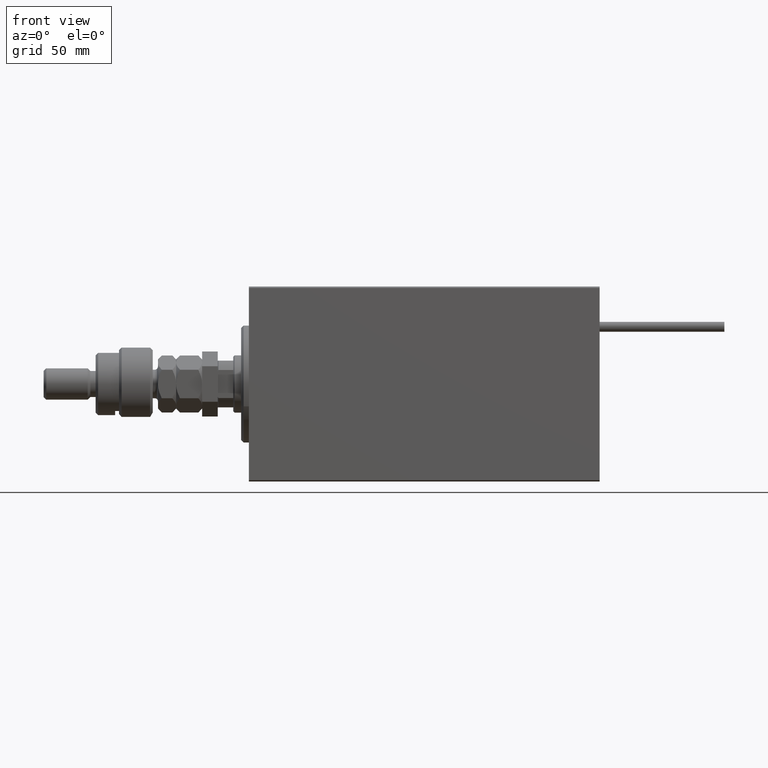
[diagram: clean part render]
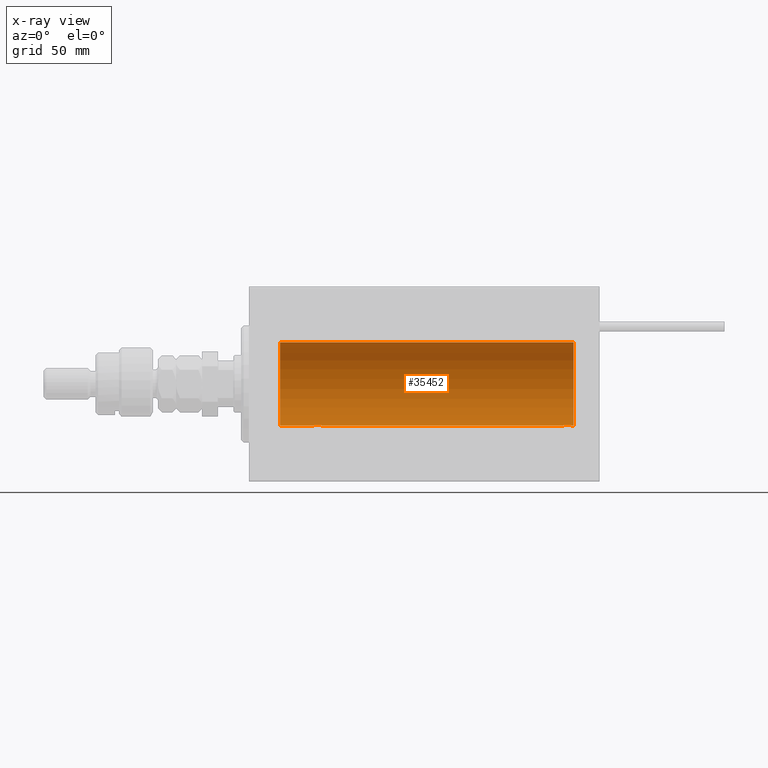
[diagram: x-ray — body ghosted, one internal face saturated and labeled with its STEP entity id]
A machine part, front view, then the same camera in x-ray: the body is ghosted and one INTERNAL B-rep face — a face not visible from any outside direction — is saturated and labeled: STEP entity #35452.
In plain terms, the highlighted cylindrical surface (partial cylindrical patch) has radius 16 mm, axis along (-1, -0, -0).
Its self-contained STEP definition (entity closure, byte-faithful):
#1146 = VECTOR ( 'NONE', #15859, 1000.000000000000000 ) ;
#1568 = CARTESIAN_POINT ( 'NONE',  ( 124.3978372649889508, 0.6445079780200543285, -15.98747331501412461 ) ) ;
#1765 = ORIENTED_EDGE ( 'NONE', *, *, #32728, .F. ) ;
#2180 = ORIENTED_EDGE ( 'NONE', *, *, #9763, .F. ) ;
#2377 = CARTESIAN_POINT ( 'NONE',  ( 123.8207582482893514, 1.507649250492127280, -15.92908549642226745 ) ) ;
#2409 = CARTESIAN_POINT ( 'NONE',  ( 125.0000000000000000, 0.000000000000000000, 0.000000000000000000 ) ) ;
#2413 = DIRECTION ( 'NONE',  ( -1.000000000000000000, 0.000000000000000000, 0.000000000000000000 ) ) ;
#2506 = VERTEX_POINT ( 'NONE', #27371 ) ;
#4272 = CARTESIAN_POINT ( 'NONE',  ( 24.50000000000000000, -2.103177090749212087E-15, -16.00000000000000000 ) ) ;
#5263 = LINE ( 'NONE', #21637, #51863 ) ;
#5868 = CARTESIAN_POINT ( 'NONE',  ( 124.4356905292613078, 0.5198215460038736468, -15.99206840425679310 ) ) ;
#6010 = DIRECTION ( 'NONE',  ( 0.000000000000000000, 0.000000000000000000, 1.000000000000000000 ) ) ;
#6136 = CARTESIAN_POINT ( 'NONE',  ( 124.0900152810012571, 1.220169175415116714, -15.95377581882983975 ) ) ;
#6408 = CARTESIAN_POINT ( 'NONE',  ( 120.5129947599158697, 0.2623312429553169567, -15.99836091803360105 ) ) ;
#6436 = FACE_OUTER_BOUND ( 'NONE', #16516, .T. ) ;
#6481 = CARTESIAN_POINT ( 'NONE',  ( 125.0000000000000000, 0.000000000000000000, 16.00000000000000000 ) ) ;
#6489 = CARTESIAN_POINT ( 'NONE',  ( 28.29749928605041021, 0.8866640484200126737, -15.97587307151818514 ) ) ;
#6804 = VECTOR ( 'NONE', #30039, 1000.000000000000000 ) ;
#6971 = CARTESIAN_POINT ( 'NONE',  ( 11.99999999999999645, 0.000000000000000000, 0.000000000000000000 ) ) ;
#7017 = CARTESIAN_POINT ( 'NONE',  ( 24.51299475991586974, 0.2623312429553280034, -15.99836091803359750 ) ) ;
#7201 = DIRECTION ( 'NONE',  ( -1.000000000000000000, -0.000000000000000000, -0.000000000000000000 ) ) ;
#8985 = VERTEX_POINT ( 'NONE', #4272 ) ;
#9174 = EDGE_CURVE ( 'NONE', #24234, #16829, #33188, .T. ) ;
#9507 = DIRECTION ( 'NONE',  ( -1.000000000000000000, 0.000000000000000000, 0.000000000000000000 ) ) ;
#9592 = ORIENTED_EDGE ( 'NONE', *, *, #9174, .T. ) ;
#9639 = CARTESIAN_POINT ( 'NONE',  ( 120.6024112994440713, 0.6452446332037987675, -15.98744362947834929 ) ) ;
#9763 = EDGE_CURVE ( 'NONE', #2506, #11901, #42973, .T. ) ;
#10505 = CARTESIAN_POINT ( 'NONE',  ( 28.00737160312429452, 1.321075116345886924, -15.94564302722882942 ) ) ;
#10571 = AXIS2_PLACEMENT_3D ( 'NONE', #6971, #2413, #14767 ) ;
#10683 = CARTESIAN_POINT ( 'NONE',  ( 124.5000000000000142, 0.1305944228192319756, -16.00000000000000000 ) ) ;
#10950 = LINE ( 'NONE', #48569, #26982 ) ;
#11297 = CARTESIAN_POINT ( 'NONE',  ( 24.70286585251779954, 0.8874076679346754037, -15.97583181162461408 ) ) ;
#11401 = ORIENTED_EDGE ( 'NONE', *, *, #51707, .F. ) ;
#11901 = VERTEX_POINT ( 'NONE', #52494 ) ;
#13672 = CARTESIAN_POINT ( 'NONE',  ( 123.0191309771011134, 1.935876924222067919, -15.88247600692093187 ) ) ;
#14555 = CARTESIAN_POINT ( 'NONE',  ( 24.60241129944407135, 0.6452446332038132004, -15.98744362947834929 ) ) ;
#14731 = CARTESIAN_POINT ( 'NONE',  ( 122.6298530835049974, 2.000047931387132216, -15.87450182760079898 ) ) ;
#14763 = DIRECTION ( 'NONE',  ( 0.000000000000000000, 0.000000000000000000, 1.000000000000000000 ) ) ;
#14767 = DIRECTION ( 'NONE',  ( 0.000000000000000000, 0.000000000000000000, 1.000000000000000000 ) ) ;
#14818 = CARTESIAN_POINT ( 'NONE',  ( 28.09001528100123579, 1.220169175415121154, -15.95377581882983975 ) ) ;
#15075 = CARTESIAN_POINT ( 'NONE',  ( 28.23482670674955486, 1.003662148334367954, -15.96885838080210718 ) ) ;
#15859 = DIRECTION ( 'NONE',  ( -1.000000000000000000, -0.000000000000000000, -0.000000000000000000 ) ) ;
#15868 = VERTEX_POINT ( 'NONE', #47359 ) ;
#16516 = EDGE_LOOP ( 'NONE', ( #1765, #2180, #39915, #29839, #11401, #39209, #24861, #9592 ) ) ;
#16829 = VERTEX_POINT ( 'NONE', #30913 ) ;
#18229 = CARTESIAN_POINT ( 'NONE',  ( 122.7625158300790105, 1.987008272775781403, -15.87616016863256618 ) ) ;
#18496 = CARTESIAN_POINT ( 'NONE',  ( 123.3861775705726984, 1.797743958659248964, -15.89876304682111652 ) ) ;
#18730 = EDGE_CURVE ( 'NONE', #15868, #25471, #48328, .T. ) ;
#18759 = CARTESIAN_POINT ( 'NONE',  ( 121.9746824354059385, 1.947280337074152268, -15.88137861827786423 ) ) ;
#19108 = CARTESIAN_POINT ( 'NONE',  ( 24.50000000000000000, -2.103177090749212087E-15, -16.00000000000000000 ) ) ;
#19620 = CARTESIAN_POINT ( 'NONE',  ( 28.39783726498896144, 0.6445079780200569930, -15.98747331501412816 ) ) ;
#20339 = VERTEX_POINT ( 'NONE', #41204 ) ;
#20896 = LINE ( 'NONE', #41609, #6804 ) ;
#21637 = CARTESIAN_POINT ( 'NONE',  ( 125.0000000000000000, 1.959434878635765131E-15, -16.00000000000000000 ) ) ;
#22518 = CARTESIAN_POINT ( 'NONE',  ( 124.4869092483212683, 0.2632563459770841940, -15.99834873924246104 ) ) ;
#22812 = CYLINDRICAL_SURFACE ( 'NONE', #24722, 16.00000000000000000 ) ;
#22861 = CARTESIAN_POINT ( 'NONE',  ( 28.49999999999999645, 1.959434851239213200E-15, -16.00000000000000000 ) ) ;
#23132 = CARTESIAN_POINT ( 'NONE',  ( 26.23808537237744787, 1.999903730784160505, -15.87451999516786216 ) ) ;
#23395 = CARTESIAN_POINT ( 'NONE',  ( 27.82075824828932653, 1.507649250492135717, -15.92908549642227101 ) ) ;
#24234 = VERTEX_POINT ( 'NONE', #26839 ) ;
#24722 = AXIS2_PLACEMENT_3D ( 'NONE', #2409, #35188, #14763 ) ;
#24861 = ORIENTED_EDGE ( 'NONE', *, *, #52439, .F. ) ;
#25471 = VERTEX_POINT ( 'NONE', #40733 ) ;
#26013 = CARTESIAN_POINT ( 'NONE',  ( 120.9938928753175560, 1.322357532253806589, -15.94553003295878391 ) ) ;
#26548 = CARTESIAN_POINT ( 'NONE',  ( 123.1438696803301411, 1.898058445420877982, -15.88709929148890687 ) ) ;
#26636 = CARTESIAN_POINT ( 'NONE',  ( 28.50000000000001066, 0.1305944228192323919, -16.00000000000000711 ) ) ;
#26810 = CARTESIAN_POINT ( 'NONE',  ( 121.2704388826021784, 1.598790766515134409, -15.92099550861380841 ) ) ;
#26839 = CARTESIAN_POINT ( 'NONE',  ( 120.5000000000000142, -1.209844185672201777E-14, -16.00000000000000000 ) ) ;
#26892 = CARTESIAN_POINT ( 'NONE',  ( 24.90948495147900843, 1.219564485341768867, -15.95382484008323054 ) ) ;
#26982 = VECTOR ( 'NONE', #7201, 1000.000000000000000 ) ;
#27150 = CARTESIAN_POINT ( 'NONE',  ( 24.99389287531753823, 1.322357532253824131, -15.94553003295876970 ) ) ;
#27371 = CARTESIAN_POINT ( 'NONE',  ( 125.0000000000000000, 0.000000000000000000, 16.00000000000000000 ) ) ;
#27420 = CARTESIAN_POINT ( 'NONE',  ( 28.48690924832126470, 0.2632563459770842496, -15.99834873924246814 ) ) ;
#29839 = ORIENTED_EDGE ( 'NONE', *, *, #18730, .T. ) ;
#30039 = DIRECTION ( 'NONE',  ( -1.000000000000000000, -0.000000000000000000, -0.000000000000000000 ) ) ;
#30322 = CARTESIAN_POINT ( 'NONE',  ( 121.4934081844042169, 1.747750603376289957, -15.90457341008072412 ) ) ;
#30586 = CARTESIAN_POINT ( 'NONE',  ( 123.5031124703503878, 1.735145127817744770, -15.90580292899658410 ) ) ;
#30913 = CARTESIAN_POINT ( 'NONE',  ( 124.5000000000000142, 1.959434851248285101E-15, -16.00000000000000000 ) ) ;
#30942 = CARTESIAN_POINT ( 'NONE',  ( 27.14386968033013758, 1.898058445420889750, -15.88709929148890510 ) ) ;
#31208 = CARTESIAN_POINT ( 'NONE',  ( 26.62985308350499025, 2.000047931387146871, -15.87450182760079898 ) ) ;
#31464 = CARTESIAN_POINT ( 'NONE',  ( 28.43569052926130425, 0.5198215460038758673, -15.99206840425679665 ) ) ;
#31731 = CARTESIAN_POINT ( 'NONE',  ( 24.56388673317936622, 0.5181437283162044771, -15.99211983514074653 ) ) ;
#31841 = EDGE_CURVE ( 'NONE', #8985, #20339, #35655, .T. ) ;
#32728 = EDGE_CURVE ( 'NONE', #11901, #16829, #20896, .T. ) ;
#33188 = B_SPLINE_CURVE_WITH_KNOTS ( 'NONE', 3,
 ( #39185, #47517, #6408, #38659, #9639, #51553, #39187, #39443, #26013, #26810, #30322, #18759, #42429, #14731, #18229, #13672, #26548, #18496, #30586, #34624, #2377, #42958, #6136, #43231, #34885, #1568, #5868, #22518, #10683, #34354 ),
 .UNSPECIFIED., .F., .F.,
 ( 4, 2, 2, 2, 2, 2, 2, 2, 2, 2, 2, 2, 2, 2, 4 ),
 ( 2.296808397794382698E-18, 0.0003911894522871192811, 0.0007823789045742362853, 0.001173568356861353452, 0.001564757809148470402, 0.002347136713722703001, 0.003129515618296936467, 0.003520705070584053634, 0.003911894522871170801, 0.004303083975158287534, 0.004694273427445404268, 0.005085462879732521868, 0.005476652332019639469, 0.005867841784306756202, 0.006259031236593872935 ),
 .UNSPECIFIED. ) ;
#34354 = CARTESIAN_POINT ( 'NONE',  ( 124.5000000000000142, 1.959434851248285101E-15, -16.00000000000000000 ) ) ;
#34624 = CARTESIAN_POINT ( 'NONE',  ( 123.7196765744227349, 1.590393755196005232, -15.92092783521423627 ) ) ;
#34885 = CARTESIAN_POINT ( 'NONE',  ( 124.2974992860504244, 0.8866640484200082328, -15.97587307151818159 ) ) ;
#34964 = CARTESIAN_POINT ( 'NONE',  ( 27.71967657442277044, 1.590393755196006786, -15.92092783521423627 ) ) ;
#35188 = DIRECTION ( 'NONE',  ( -1.000000000000000000, -0.000000000000000000, -0.000000000000000000 ) ) ;
#35452 = ADVANCED_FACE ( 'NONE', ( #6436 ), #22812, .F. ) ;
#35655 = B_SPLINE_CURVE_WITH_KNOTS ( 'NONE', 3,
 ( #19108, #43047, #7017, #31731, #14555, #11297, #39267, #26892, #27150, #43571, #44099, #35758, #23132, #31208, #47857, #47601, #30942, #43312, #47336, #34964, #23395, #10505, #14818, #15075, #6489, #19620, #31464, #27420, #26636, #22861 ),
 .UNSPECIFIED., .F., .F.,
 ( 4, 2, 2, 2, 2, 2, 2, 2, 2, 2, 2, 2, 2, 2, 4 ),
 ( 6.061354251518217081E-19, 0.0003911894522871152153, 0.0007823789045742298885, 0.001173568356861344345, 0.001564757809148459126, 0.002347136713722688690, 0.003129515618296918687, 0.003520705070584038889, 0.003911894522871159526, 0.004303083975158279728, 0.004694273427445399931, 0.005085462879732520133, 0.005476652332019640336, 0.005867841784306760539, 0.006259031236593880741 ),
 .UNSPECIFIED. ) ;
#35758 = CARTESIAN_POINT ( 'NONE',  ( 25.97468243540595623, 1.947280337074166257, -15.88137861827786779 ) ) ;
#38659 = CARTESIAN_POINT ( 'NONE',  ( 120.5638867331794017, 0.5181437283161933749, -15.99211983514075008 ) ) ;
#39185 = CARTESIAN_POINT ( 'NONE',  ( 120.5000000000000142, -1.209844185672201777E-14, -16.00000000000000000 ) ) ;
#39187 = CARTESIAN_POINT ( 'NONE',  ( 120.7643190150173922, 1.002241074716269775, -15.96895041604535770 ) ) ;
#39209 = ORIENTED_EDGE ( 'NONE', *, *, #31841, .T. ) ;
#39267 = CARTESIAN_POINT ( 'NONE',  ( 24.76431901501739219, 1.002241074716281766, -15.96895041604536658 ) ) ;
#39443 = CARTESIAN_POINT ( 'NONE',  ( 120.9094849514790297, 1.219564485341755100, -15.95382484008322344 ) ) ;
#39915 = ORIENTED_EDGE ( 'NONE', *, *, #46304, .T. ) ;
#40043 = LINE ( 'NONE', #6481, #1146 ) ;
#40733 = CARTESIAN_POINT ( 'NONE',  ( 11.99999999999999645, 1.959434878635765131E-15, -16.00000000000000000 ) ) ;
#41204 = CARTESIAN_POINT ( 'NONE',  ( 28.49999999999999645, 1.959434851239213200E-15, -16.00000000000000000 ) ) ;
#41609 = CARTESIAN_POINT ( 'NONE',  ( 125.0000000000000000, 1.959434878635765131E-15, -16.00000000000000000 ) ) ;
#42429 = CARTESIAN_POINT ( 'NONE',  ( 122.2380853723774408, 1.999903730784144962, -15.87451999516785861 ) ) ;
#42958 = CARTESIAN_POINT ( 'NONE',  ( 124.0073716031243123, 1.321075116345880041, -15.94564302722883653 ) ) ;
#42973 = CIRCLE ( 'NONE', #43819, 16.00000000000000000 ) ;
#43047 = CARTESIAN_POINT ( 'NONE',  ( 24.50000000000000000, 0.1322838750249236695, -16.00000000000000000 ) ) ;
#43231 = CARTESIAN_POINT ( 'NONE',  ( 124.2348267067495726, 1.003662148334364845, -15.96885838080210362 ) ) ;
#43312 = CARTESIAN_POINT ( 'NONE',  ( 27.38617757057270197, 1.797743958659261398, -15.89876304682112718 ) ) ;
#43571 = CARTESIAN_POINT ( 'NONE',  ( 25.27043888260214999, 1.598790766515153061, -15.92099550861380486 ) ) ;
#43819 = AXIS2_PLACEMENT_3D ( 'NONE', #46331, #9507, #6010 ) ;
#44099 = CARTESIAN_POINT ( 'NONE',  ( 25.49340818440418488, 1.747750603376301726, -15.90457341008072056 ) ) ;
#46304 = EDGE_CURVE ( 'NONE', #2506, #15868, #40043, .T. ) ;
#46331 = CARTESIAN_POINT ( 'NONE',  ( 125.0000000000000000, 0.000000000000000000, 0.000000000000000000 ) ) ;
#46913 = DIRECTION ( 'NONE',  ( -1.000000000000000000, -0.000000000000000000, -0.000000000000000000 ) ) ;
#47336 = CARTESIAN_POINT ( 'NONE',  ( 27.50311247035039486, 1.735145127817748989, -15.90580292899658765 ) ) ;
#47359 = CARTESIAN_POINT ( 'NONE',  ( 11.99999999999999645, 0.000000000000000000, 16.00000000000000000 ) ) ;
#47517 = CARTESIAN_POINT ( 'NONE',  ( 120.5000000000000000, 0.1322838750249116235, -16.00000000000000355 ) ) ;
#47601 = CARTESIAN_POINT ( 'NONE',  ( 27.01913097710113121, 1.935876924222081907, -15.88247600692093187 ) ) ;
#47857 = CARTESIAN_POINT ( 'NONE',  ( 26.76251583007899271, 1.987008272775795614, -15.87616016863256263 ) ) ;
#48328 = CIRCLE ( 'NONE', #10571, 16.00000000000000000 ) ;
#48569 = CARTESIAN_POINT ( 'NONE',  ( 125.0000000000000000, 1.959434878635765131E-15, -16.00000000000000000 ) ) ;
#51553 = CARTESIAN_POINT ( 'NONE',  ( 120.7028658525178315, 0.8874076679346604157, -15.97583181162460697 ) ) ;
#51707 = EDGE_CURVE ( 'NONE', #8985, #25471, #5263, .T. ) ;
#51863 = VECTOR ( 'NONE', #46913, 1000.000000000000000 ) ;
#52439 = EDGE_CURVE ( 'NONE', #24234, #20339, #10950, .T. ) ;
#52494 = CARTESIAN_POINT ( 'NONE',  ( 125.0000000000000000, 1.959434878635765131E-15, -16.00000000000000000 ) ) ;